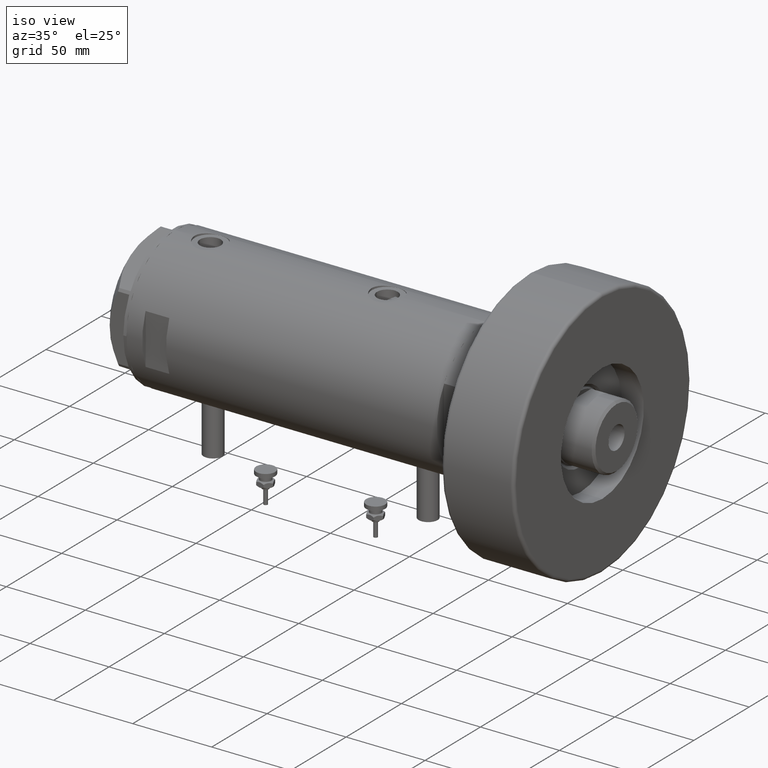
[diagram: clean part render]
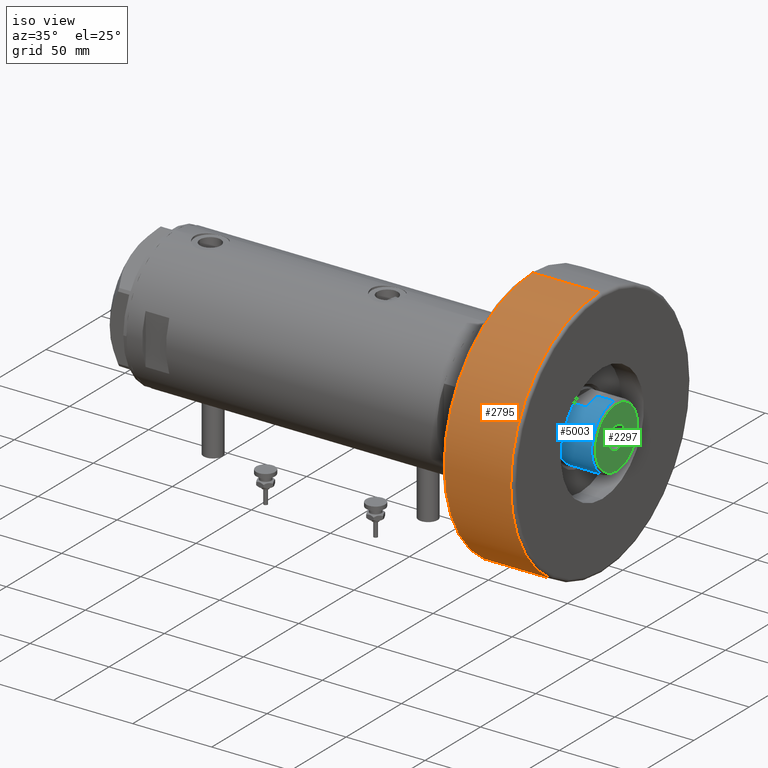
[diagram: same view with three faces highlighted in distinct colors, each labeled with its STEP entity id]
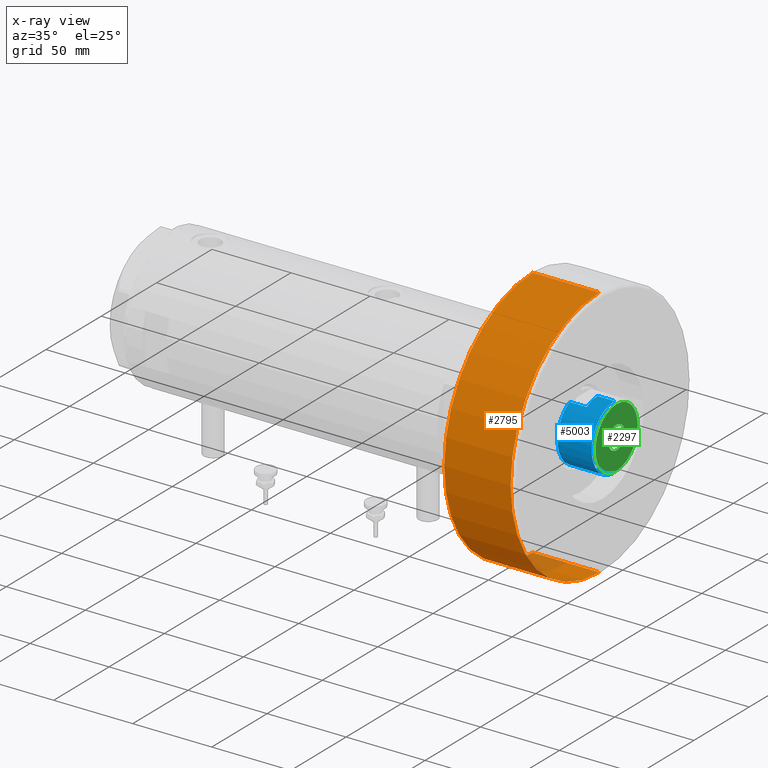
[diagram: x-ray of the same camera — body ghosted, the three highlighted faces saturated]
A machine part, iso view with three faces highlighted in distinct colors.
The next image is the same camera in x-ray (body ghosted, the three faces saturated) — at least one of them is partly hidden behind the body in this view.
Their STEP definitions:

[orange] entity #2795 — the highlighted cylindrical surface (partial cylindrical patch) has radius 80 mm, axis along (-1, -0, 0).
#68 = VERTEX_POINT ( 'NONE', #4587 ) ;
#126 = AXIS2_PLACEMENT_3D ( 'NONE', #5011, #1450, #3043 ) ;
#331 = VERTEX_POINT ( 'NONE', #1928 ) ;
#361 = EDGE_CURVE ( 'NONE', #1071, #2047, #2902, .T. ) ;
#395 = EDGE_LOOP ( 'NONE', ( #1053, #3475, #658, #3607 ) ) ;
#658 = ORIENTED_EDGE ( 'NONE', *, *, #3047, .T. ) ;
#1053 = ORIENTED_EDGE ( 'NONE', *, *, #3696, .F. ) ;
#1071 = VERTEX_POINT ( 'NONE', #3947 ) ;
#1211 = LINE ( 'NONE', #2168, #1997 ) ;
#1430 = DIRECTION ( 'NONE',  ( -1.000000000000000000, 0.000000000000000000, 0.000000000000000000 ) ) ;
#1450 = DIRECTION ( 'NONE',  ( -0.000000000000000000, -0.000000000000000000, -1.000000000000000000 ) ) ;
#1888 = CIRCLE ( 'NONE', #3448, 80.00000000000000000 ) ;
#1917 = FACE_OUTER_BOUND ( 'NONE', #395, .T. ) ;
#1928 = CARTESIAN_POINT ( 'NONE',  ( -80.00000000000000000, 0.000000000000000000, 2.000000000000001776 ) ) ;
#1992 = AXIS2_PLACEMENT_3D ( 'NONE', #4896, #5882, #1430 ) ;
#1997 = VECTOR ( 'NONE', #5093, 1000.000000000000000 ) ;
#2041 = CARTESIAN_POINT ( 'NONE',  ( 0.000000000000000000, 0.000000000000000000, 2.000000000000001776 ) ) ;
#2047 = VERTEX_POINT ( 'NONE', #4197 ) ;
#2168 = CARTESIAN_POINT ( 'NONE',  ( 80.00000000000000000, 9.797174393178826052E-15, 46.00000000000000000 ) ) ;
#2722 = LINE ( 'NONE', #5247, #5722 ) ;
#2795 = ADVANCED_FACE ( 'NONE', ( #1917 ), #3900, .T. ) ;
#2837 = EDGE_CURVE ( 'NONE', #331, #68, #1888, .T. ) ;
#2902 = CIRCLE ( 'NONE', #126, 80.00000000000000000 ) ;
#3043 = DIRECTION ( 'NONE',  ( 1.000000000000000000, 0.000000000000000000, 0.000000000000000000 ) ) ;
#3047 = EDGE_CURVE ( 'NONE', #2047, #331, #2722, .T. ) ;
#3448 = AXIS2_PLACEMENT_3D ( 'NONE', #2041, #5543, #5052 ) ;
#3475 = ORIENTED_EDGE ( 'NONE', *, *, #361, .T. ) ;
#3607 = ORIENTED_EDGE ( 'NONE', *, *, #2837, .T. ) ;
#3696 = EDGE_CURVE ( 'NONE', #1071, #68, #1211, .T. ) ;
#3900 = CYLINDRICAL_SURFACE ( 'NONE', #1992, 80.00000000000000000 ) ;
#3947 = CARTESIAN_POINT ( 'NONE',  ( 80.00000000000000000, 9.797174393178826052E-15, 44.00000000000000000 ) ) ;
#4175 = DIRECTION ( 'NONE',  ( -0.000000000000000000, -0.000000000000000000, -1.000000000000000000 ) ) ;
#4197 = CARTESIAN_POINT ( 'NONE',  ( -80.00000000000000000, 0.000000000000000000, 44.00000000000000000 ) ) ;
#4587 = CARTESIAN_POINT ( 'NONE',  ( 80.00000000000000000, 9.797174393178826052E-15, 2.000000000000001776 ) ) ;
#4896 = CARTESIAN_POINT ( 'NONE',  ( 0.000000000000000000, 0.000000000000000000, 46.00000000000000000 ) ) ;
#5011 = CARTESIAN_POINT ( 'NONE',  ( 0.000000000000000000, 0.000000000000000000, 44.00000000000000000 ) ) ;
#5052 = DIRECTION ( 'NONE',  ( 1.000000000000000000, 0.000000000000000000, 0.000000000000000000 ) ) ;
#5093 = DIRECTION ( 'NONE',  ( -0.000000000000000000, -0.000000000000000000, -1.000000000000000000 ) ) ;
#5247 = CARTESIAN_POINT ( 'NONE',  ( -80.00000000000000000, 0.000000000000000000, 46.00000000000000000 ) ) ;
#5543 = DIRECTION ( 'NONE',  ( 0.000000000000000000, 0.000000000000000000, 1.000000000000000000 ) ) ;
#5722 = VECTOR ( 'NONE', #4175, 1000.000000000000000 ) ;
#5882 = DIRECTION ( 'NONE',  ( -0.000000000000000000, -0.000000000000000000, -1.000000000000000000 ) ) ;

[blue] entity #5003 — the highlighted cylindrical surface (partial cylindrical patch) has radius 20.5 mm, axis along (-1, -0, 0).
#77 = CARTESIAN_POINT ( 'NONE',  ( -17.97852886083842705, -9.849999999999972999, 230.3000000000000114 ) ) ;
#152 = VERTEX_POINT ( 'NONE', #5534 ) ;
#171 = AXIS2_PLACEMENT_3D ( 'NONE', #2726, #217, #3758 ) ;
#201 = EDGE_CURVE ( 'NONE', #495, #1257, #4042, .T. ) ;
#217 = DIRECTION ( 'NONE',  ( -0.000000000000000000, -0.000000000000000000, -1.000000000000000000 ) ) ;
#374 = CARTESIAN_POINT ( 'NONE',  ( 20.50000000000000355, 2.510525938252074481E-15, 241.3000000000000114 ) ) ;
#440 = DIRECTION ( 'NONE',  ( -0.000000000000000000, -0.000000000000000000, -1.000000000000000000 ) ) ;
#495 = VERTEX_POINT ( 'NONE', #3491 ) ;
#539 = VERTEX_POINT ( 'NONE', #4040 ) ;
#562 = AXIS2_PLACEMENT_3D ( 'NONE', #1180, #4635, #3665 ) ;
#778 = ORIENTED_EDGE ( 'NONE', *, *, #5205, .F. ) ;
#810 = VERTEX_POINT ( 'NONE', #6346 ) ;
#1119 = DIRECTION ( 'NONE',  ( 0.000000000000000000, 0.000000000000000000, -1.000000000000000000 ) ) ;
#1168 = ORIENTED_EDGE ( 'NONE', *, *, #201, .T. ) ;
#1180 = CARTESIAN_POINT ( 'NONE',  ( 0.000000000000000000, 0.000000000000000000, 241.3000000000000114 ) ) ;
#1210 = CARTESIAN_POINT ( 'NONE',  ( 0.000000000000000000, 0.000000000000000000, 251.9000000000001194 ) ) ;
#1257 = VERTEX_POINT ( 'NONE', #3490 ) ;
#1367 = VECTOR ( 'NONE', #440, 1000.000000000000000 ) ;
#1473 = LINE ( 'NONE', #3451, #4050 ) ;
#1506 = CARTESIAN_POINT ( 'NONE',  ( -20.50000000000000355, 0.000000000000000000, 251.9000000000001194 ) ) ;
#1653 = DIRECTION ( 'NONE',  ( 1.000000000000000000, 0.000000000000000000, 0.000000000000000000 ) ) ;
#1710 = EDGE_CURVE ( 'NONE', #2943, #810, #1473, .T. ) ;
#1751 = CARTESIAN_POINT ( 'NONE',  ( -20.50000000000000355, 0.000000000000000000, 241.3000000000000114 ) ) ;
#1788 = CARTESIAN_POINT ( 'NONE',  ( 0.000000000000000000, 0.000000000000000000, 241.3000000000000114 ) ) ;
#1892 = DIRECTION ( 'NONE',  ( 1.000000000000000000, 0.000000000000000000, 0.000000000000000000 ) ) ;
#2069 = AXIS2_PLACEMENT_3D ( 'NONE', #1788, #4322, #1892 ) ;
#2133 = CARTESIAN_POINT ( 'NONE',  ( 17.97852886083843060, -9.849999999999994316, 241.3000000000000114 ) ) ;
#2186 = AXIS2_PLACEMENT_3D ( 'NONE', #1210, #1119, #5092 ) ;
#2206 = LINE ( 'NONE', #1751, #5652 ) ;
#2331 = DIRECTION ( 'NONE',  ( -0.000000000000000000, -0.000000000000000000, -1.000000000000000000 ) ) ;
#2391 = VERTEX_POINT ( 'NONE', #1506 ) ;
#2456 = EDGE_LOOP ( 'NONE', ( #778, #5597, #4150, #1168, #4679, #2563, #5123, #5695 ) ) ;
#2482 = EDGE_CURVE ( 'NONE', #152, #2391, #4059, .T. ) ;
#2563 = ORIENTED_EDGE ( 'NONE', *, *, #4426, .T. ) ;
#2726 = CARTESIAN_POINT ( 'NONE',  ( 0.000000000000000000, 0.000000000000000000, 241.3000000000000114 ) ) ;
#2765 = EDGE_CURVE ( 'NONE', #1257, #4449, #3474, .T. ) ;
#2943 = VERTEX_POINT ( 'NONE', #2133 ) ;
#3182 = CYLINDRICAL_SURFACE ( 'NONE', #171, 20.50000000000000355 ) ;
#3189 = DIRECTION ( 'NONE',  ( -0.000000000000000000, -0.000000000000000000, -1.000000000000000000 ) ) ;
#3451 = CARTESIAN_POINT ( 'NONE',  ( 17.97852886083843060, -9.849999999999994316, 241.3000000000000114 ) ) ;
#3474 = LINE ( 'NONE', #5912, #1367 ) ;
#3490 = CARTESIAN_POINT ( 'NONE',  ( -17.97852886083842705, -9.849999999999996092, 241.3000000000000114 ) ) ;
#3491 = CARTESIAN_POINT ( 'NONE',  ( -20.50000000000000000, 0.000000000000000000, 241.3000000000000114 ) ) ;
#3665 = DIRECTION ( 'NONE',  ( 1.000000000000000000, 0.000000000000000000, 0.000000000000000000 ) ) ;
#3703 = EDGE_CURVE ( 'NONE', #2943, #539, #5615, .T. ) ;
#3758 = DIRECTION ( 'NONE',  ( -1.000000000000000000, 0.000000000000000000, 0.000000000000000000 ) ) ;
#4040 = CARTESIAN_POINT ( 'NONE',  ( 20.50000000000000000, 2.510525938252074481E-15, 241.3000000000000114 ) ) ;
#4042 = CIRCLE ( 'NONE', #2069, 20.50000000000000000 ) ;
#4050 = VECTOR ( 'NONE', #5487, 1000.000000000000000 ) ;
#4059 = CIRCLE ( 'NONE', #2186, 20.50000000000000355 ) ;
#4065 = DIRECTION ( 'NONE',  ( 0.000000000000000000, 0.000000000000000000, 1.000000000000000000 ) ) ;
#4150 = ORIENTED_EDGE ( 'NONE', *, *, #5896, .T. ) ;
#4322 = DIRECTION ( 'NONE',  ( 0.000000000000000000, 0.000000000000000000, 1.000000000000000000 ) ) ;
#4426 = EDGE_CURVE ( 'NONE', #4449, #810, #6364, .T. ) ;
#4449 = VERTEX_POINT ( 'NONE', #77 ) ;
#4608 = CARTESIAN_POINT ( 'NONE',  ( 0.000000000000000000, 0.000000000000000000, 230.3000000000000114 ) ) ;
#4635 = DIRECTION ( 'NONE',  ( 0.000000000000000000, 0.000000000000000000, 1.000000000000000000 ) ) ;
#4679 = ORIENTED_EDGE ( 'NONE', *, *, #2765, .T. ) ;
#4794 = LINE ( 'NONE', #374, #5641 ) ;
#5003 = ADVANCED_FACE ( 'NONE', ( #6222 ), #3182, .T. ) ;
#5092 = DIRECTION ( 'NONE',  ( 1.000000000000000000, 0.000000000000000000, 0.000000000000000000 ) ) ;
#5123 = ORIENTED_EDGE ( 'NONE', *, *, #1710, .F. ) ;
#5205 = EDGE_CURVE ( 'NONE', #152, #539, #4794, .T. ) ;
#5320 = AXIS2_PLACEMENT_3D ( 'NONE', #4608, #4065, #1653 ) ;
#5487 = DIRECTION ( 'NONE',  ( -0.000000000000000000, -0.000000000000000000, -1.000000000000000000 ) ) ;
#5534 = CARTESIAN_POINT ( 'NONE',  ( 20.50000000000000355, 2.510525938252074481E-15, 251.9000000000001194 ) ) ;
#5597 = ORIENTED_EDGE ( 'NONE', *, *, #2482, .T. ) ;
#5615 = CIRCLE ( 'NONE', #562, 20.50000000000000000 ) ;
#5641 = VECTOR ( 'NONE', #2331, 1000.000000000000000 ) ;
#5652 = VECTOR ( 'NONE', #3189, 1000.000000000000000 ) ;
#5695 = ORIENTED_EDGE ( 'NONE', *, *, #3703, .T. ) ;
#5896 = EDGE_CURVE ( 'NONE', #2391, #495, #2206, .T. ) ;
#5912 = CARTESIAN_POINT ( 'NONE',  ( -17.97852886083842350, -9.850000000000001421, 241.3000000000000114 ) ) ;
#6222 = FACE_OUTER_BOUND ( 'NONE', #2456, .T. ) ;
#6346 = CARTESIAN_POINT ( 'NONE',  ( 17.97852886083843060, -9.849999999999960565, 230.3000000000000114 ) ) ;
#6364 = CIRCLE ( 'NONE', #5320, 20.50000000000000355 ) ;

[green] entity #2297 — the highlighted planar face has unit normal (1, 0, -0).
#47 = VERTEX_POINT ( 'NONE', #3495 ) ;
#375 = EDGE_LOOP ( 'NONE', ( #4496, #5796 ) ) ;
#467 = DIRECTION ( 'NONE',  ( -0.000000000000000000, -0.000000000000000000, 1.000000000000000000 ) ) ;
#750 = EDGE_CURVE ( 'NONE', #4991, #47, #4869, .T. ) ;
#795 = ORIENTED_EDGE ( 'NONE', *, *, #2644, .T. ) ;
#1166 = CIRCLE ( 'NONE', #5192, 7.249999999999999112 ) ;
#1329 = DIRECTION ( 'NONE',  ( 0.000000000000000000, 0.000000000000000000, 1.000000000000000000 ) ) ;
#1425 = DIRECTION ( 'NONE',  ( 1.000000000000000000, 0.000000000000000000, 0.000000000000000000 ) ) ;
#1519 = EDGE_CURVE ( 'NONE', #3200, #3950, #3623, .T. ) ;
#1746 = CARTESIAN_POINT ( 'NONE',  ( 7.249999999999999112, 0.000000000000000000, 253.3000000000000114 ) ) ;
#1820 = CARTESIAN_POINT ( 'NONE',  ( 0.000000000000000000, 0.000000000000000000, 253.3000000000000114 ) ) ;
#2297 = ADVANCED_FACE ( 'NONE', ( #3936, #2474 ), #3907, .T. ) ;
#2346 = DIRECTION ( 'NONE',  ( 0.000000000000000000, 0.000000000000000000, 1.000000000000000000 ) ) ;
#2474 = FACE_BOUND ( 'NONE', #375, .T. ) ;
#2644 = EDGE_CURVE ( 'NONE', #47, #4991, #2818, .T. ) ;
#2659 = CARTESIAN_POINT ( 'NONE',  ( 19.10000000000006182, 2.424800662311762954E-15, 253.3000000000000114 ) ) ;
#2818 = CIRCLE ( 'NONE', #3444, 19.10000000000006182 ) ;
#2901 = CARTESIAN_POINT ( 'NONE',  ( 0.000000000000000000, 0.000000000000000000, 253.3000000000000114 ) ) ;
#3000 = DIRECTION ( 'NONE',  ( 0.000000000000000000, 0.000000000000000000, 1.000000000000000000 ) ) ;
#3116 = AXIS2_PLACEMENT_3D ( 'NONE', #5726, #2346, #6284 ) ;
#3172 = EDGE_CURVE ( 'NONE', #3950, #3200, #1166, .T. ) ;
#3200 = VERTEX_POINT ( 'NONE', #3895 ) ;
#3312 = DIRECTION ( 'NONE',  ( 1.000000000000000000, 0.000000000000000000, 0.000000000000000000 ) ) ;
#3333 = EDGE_LOOP ( 'NONE', ( #795, #3660 ) ) ;
#3444 = AXIS2_PLACEMENT_3D ( 'NONE', #1820, #1329, #3312 ) ;
#3495 = CARTESIAN_POINT ( 'NONE',  ( -19.10000000000006182, 0.000000000000000000, 253.3000000000000114 ) ) ;
#3623 = CIRCLE ( 'NONE', #4659, 7.249999999999999112 ) ;
#3660 = ORIENTED_EDGE ( 'NONE', *, *, #750, .T. ) ;
#3744 = AXIS2_PLACEMENT_3D ( 'NONE', #4868, #3000, #6339 ) ;
#3823 = CARTESIAN_POINT ( 'NONE',  ( 0.000000000000000000, 0.000000000000000000, 253.3000000000000114 ) ) ;
#3895 = CARTESIAN_POINT ( 'NONE',  ( -7.249999999999999112, 8.878689293818310074E-16, 253.3000000000000114 ) ) ;
#3907 = PLANE ( 'NONE',  #3744 ) ;
#3936 = FACE_OUTER_BOUND ( 'NONE', #3333, .T. ) ;
#3950 = VERTEX_POINT ( 'NONE', #1746 ) ;
#4258 = DIRECTION ( 'NONE',  ( 1.000000000000000000, 0.000000000000000000, 0.000000000000000000 ) ) ;
#4496 = ORIENTED_EDGE ( 'NONE', *, *, #3172, .F. ) ;
#4659 = AXIS2_PLACEMENT_3D ( 'NONE', #2901, #4870, #4258 ) ;
#4868 = CARTESIAN_POINT ( 'NONE',  ( 0.000000000000000000, 0.000000000000000000, 253.3000000000000114 ) ) ;
#4869 = CIRCLE ( 'NONE', #3116, 19.10000000000006182 ) ;
#4870 = DIRECTION ( 'NONE',  ( -0.000000000000000000, -0.000000000000000000, 1.000000000000000000 ) ) ;
#4991 = VERTEX_POINT ( 'NONE', #2659 ) ;
#5192 = AXIS2_PLACEMENT_3D ( 'NONE', #3823, #467, #1425 ) ;
#5726 = CARTESIAN_POINT ( 'NONE',  ( 0.000000000000000000, 0.000000000000000000, 253.3000000000000114 ) ) ;
#5796 = ORIENTED_EDGE ( 'NONE', *, *, #1519, .F. ) ;
#6284 = DIRECTION ( 'NONE',  ( 1.000000000000000000, 0.000000000000000000, 0.000000000000000000 ) ) ;
#6339 = DIRECTION ( 'NONE',  ( 1.000000000000000000, 0.000000000000000000, -0.000000000000000000 ) ) ;